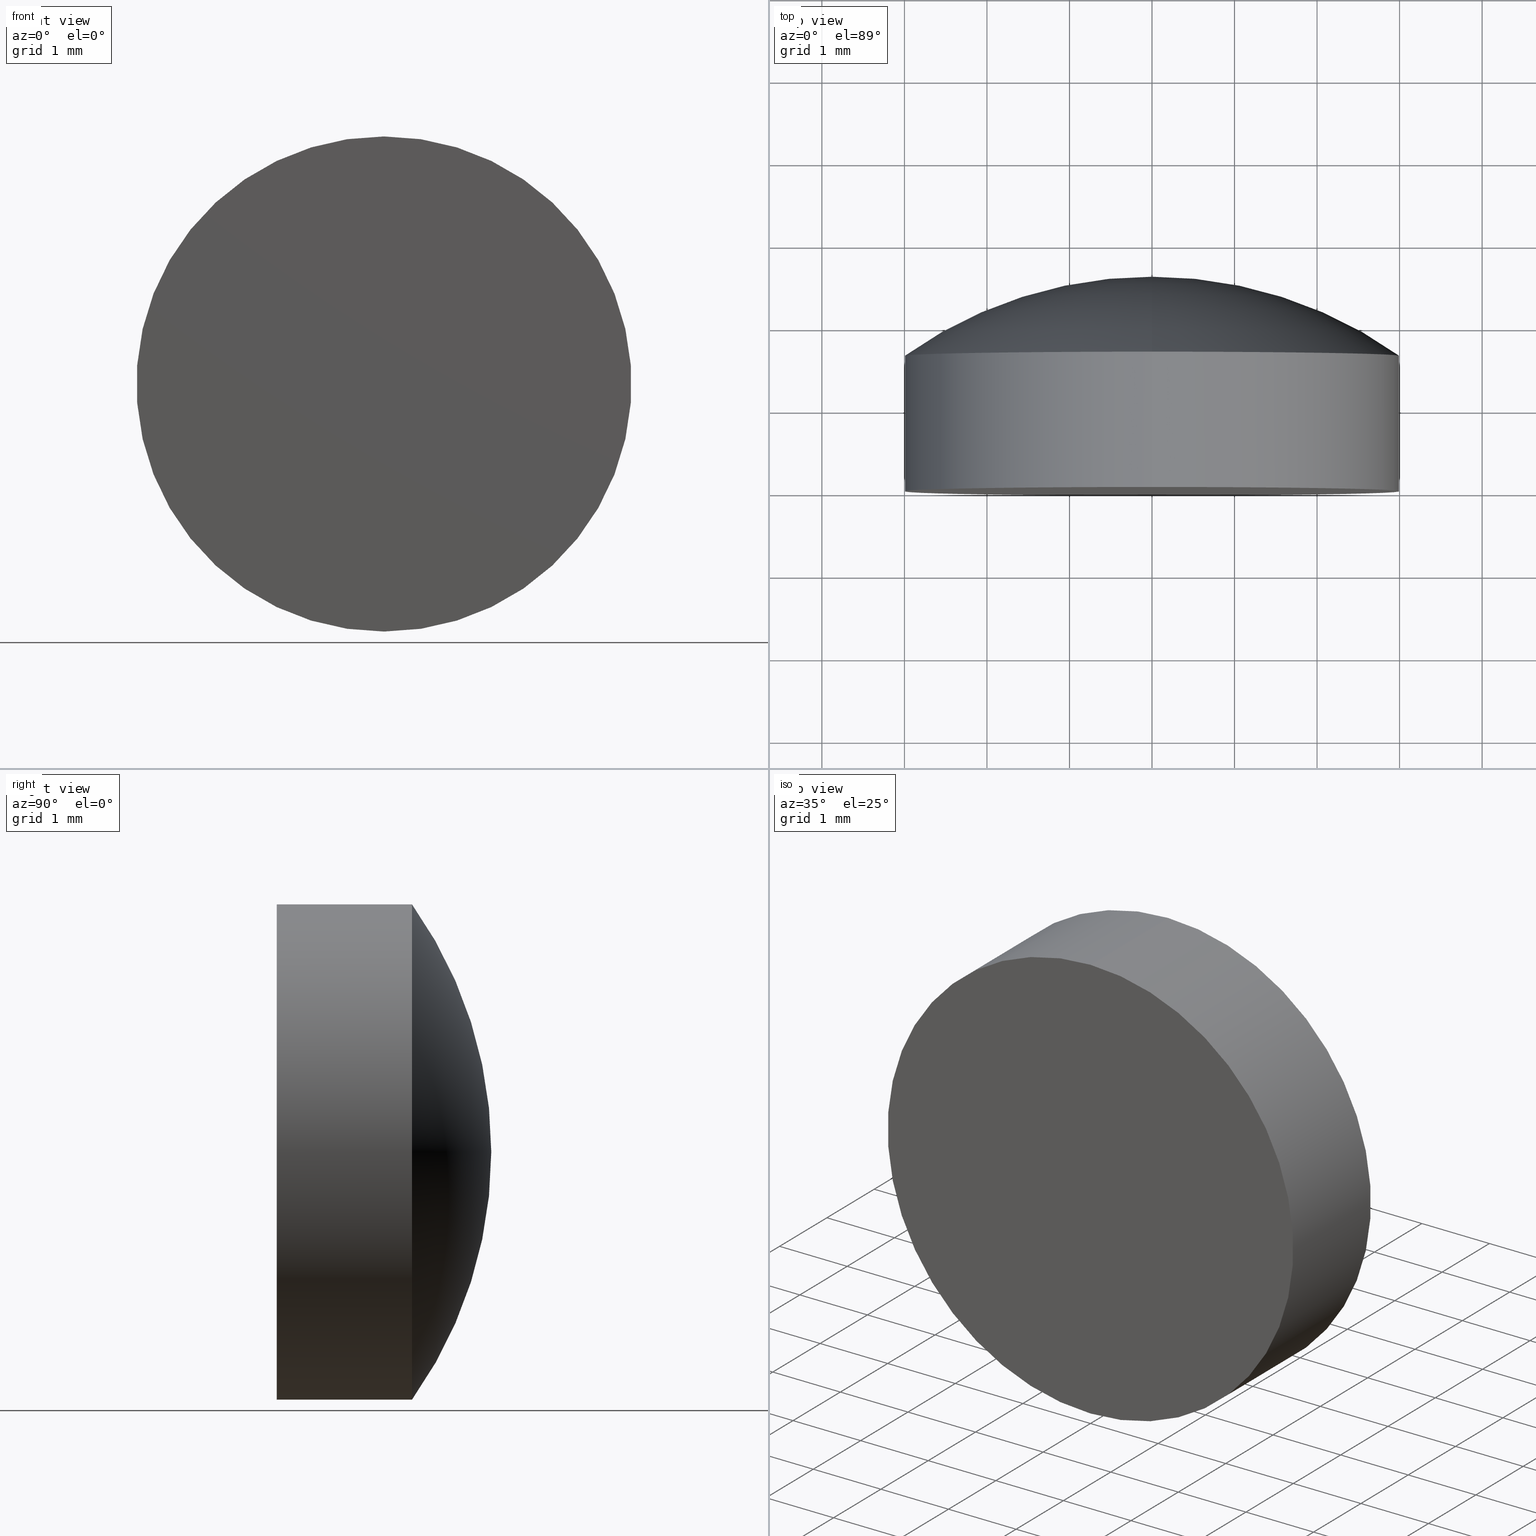
[diagram: canonical four-view strip — front | top / right | iso, engineering-drawing reading convention]
A machine part, canonical four-view strip (front | top / right | iso — engineering-drawing reading convention). The complete STEP part file that produces these views, byte-faithful:
ISO-10303-21;
HEADER;
FILE_DESCRIPTION (( 'STEP AP203' ),
    '1' );
FILE_NAME ('100560.STEP',
    '2024-05-09T04:08:32',
    ( '' ),
    ( '' ),
    'SwSTEP 2.0',
    'SolidWorks 2020',
    '' );
FILE_SCHEMA (( 'CONFIG_CONTROL_DESIGN' ));
ENDSEC;

DATA;
#1 = PERSON_AND_ORGANIZATION ( #107, #57 ) ;
#2 = PERSON_AND_ORGANIZATION_ROLE ( 'design_owner' ) ;
#3 = PERSON_AND_ORGANIZATION_ROLE ( 'design_supplier' ) ;
#4 = PRODUCT_DEFINITION_SHAPE ( 'NONE', 'NONE',  #13 ) ;
#5 = UNCERTAINTY_MEASURE_WITH_UNIT (LENGTH_MEASURE( 1.000000000000000082E-05 ), #134, 'distance_accuracy_value', 'NONE');
#6 = MANIFOLD_SOLID_BREP ( '��ת1', #21 ) ;
#7 = AXIS2_PLACEMENT_3D ( 'NONE', #60, #64, #29 ) ;
#8 = ORIENTED_EDGE ( 'NONE', *, *, #72, .T. ) ;
#9 = DIRECTION ( 'NONE',  ( -0.000000000000000000, 1.000000000000000000, -0.000000000000000000 ) ) ;
#10 = ORIENTED_EDGE ( 'NONE', *, *, #188, .T. ) ;
#11 = SECURITY_CLASSIFICATION ( '', '', #35 ) ;
#12 = PLANE ( 'NONE',  #167 ) ;
#13 = PRODUCT_DEFINITION ( 'δ֪', '', #74, #178 ) ;
#14 = DIRECTION ( 'NONE',  ( 0.000000000000000000, 0.000000000000000000, 1.000000000000000000 ) ) ;
#15 = SHAPE_DEFINITION_REPRESENTATION ( #4, #83 ) ;
#16 = APPROVAL_ROLE ( '' ) ;
#17 = CALENDAR_DATE ( 2024, 9, 5 ) ;
#18 = CALENDAR_DATE ( 2024, 9, 5 ) ;
#19 = ADVANCED_FACE ( 'NONE', ( #77 ), #26, .T. ) ;
#20 = ORIENTED_EDGE ( 'NONE', *, *, #120, .F. ) ;
#21 = CLOSED_SHELL ( 'NONE', ( #194, #37, #41, #55, #19 ) ) ;
#22 = VERTEX_POINT ( 'NONE', #118 ) ;
#23 = ORIENTED_EDGE ( 'NONE', *, *, #112, .T. ) ;
#24 = CIRCLE ( 'NONE', #44, 3.000000000000000000 ) ;
#25 = DIRECTION ( 'NONE',  ( 0.000000000000000000, 0.000000000000000000, 1.000000000000000000 ) ) ;
#26 = CYLINDRICAL_SURFACE ( 'NONE', #161, 3.000000000000000000 ) ;
#27 = DATE_AND_TIME ( #169, #154 ) ;
#28 = CARTESIAN_POINT ( 'NONE',  ( 0.000000000000000000, 1.639999999999999236, 3.000000000000000444 ) ) ;
#29 = DIRECTION ( 'NONE',  ( 1.224646799147353207E-16, 0.000000000000000000, -1.000000000000000000 ) ) ;
#30 = DATE_TIME_ROLE ( 'creation_date' ) ;
#31 = DIRECTION ( 'NONE',  ( 0.000000000000000000, 0.000000000000000000, 1.000000000000000000 ) ) ;
#32 = CC_DESIGN_PERSON_AND_ORGANIZATION_ASSIGNMENT ( #106, #95, ( #11 ) ) ;
#33 = CC_DESIGN_APPROVAL ( #96, ( #11 ) ) ;
#34 = LOCAL_TIME ( 12, 8, 31.00000000000000000, #174 ) ;
#35 = SECURITY_CLASSIFICATION_LEVEL ( 'unclassified' ) ;
#36 = CIRCLE ( 'NONE', #88, 5.169999999999999929 ) ;
#37 = ADVANCED_FACE ( 'NONE', ( #166 ), #103, .T. ) ;
#38 =( GEOMETRIC_REPRESENTATION_CONTEXT ( 3 ) GLOBAL_UNCERTAINTY_ASSIGNED_CONTEXT ( ( #5 ) ) GLOBAL_UNIT_ASSIGNED_CONTEXT ( ( #134, #90, #78 ) ) REPRESENTATION_CONTEXT ( 'NONE', 'WORKASPACE' ) );
#39 = VERTEX_POINT ( 'NONE', #28 ) ;
#40 = EDGE_LOOP ( 'NONE', ( #181, #10, #129, #160 ) ) ;
#41 = ADVANCED_FACE ( 'NONE', ( #45 ), #75, .T. ) ;
#42 = EDGE_LOOP ( 'NONE', ( #20, #145 ) ) ;
#43 = FACE_OUTER_BOUND ( 'NONE', #42, .T. ) ;
#44 = AXIS2_PLACEMENT_3D ( 'NONE', #105, #123, #168 ) ;
#45 = FACE_OUTER_BOUND ( 'NONE', #128, .T. ) ;
#46 = DIRECTION ( 'NONE',  ( 0.000000000000000000, 0.000000000000000000, 1.000000000000000000 ) ) ;
#47 = DIRECTION ( 'NONE',  ( -0.000000000000000000, 1.000000000000000000, -0.000000000000000000 ) ) ;
#48 = PERSON_AND_ORGANIZATION_ROLE ( 'creator' ) ;
#49 = CARTESIAN_POINT ( 'NONE',  ( 3.673940397442060361E-16, 1.639999999999999236, -3.000000000000000444 ) ) ;
#50 = PERSON_AND_ORGANIZATION ( #107, #57 ) ;
#51 = LOCAL_TIME ( 12, 8, 31.00000000000000000, #79 ) ;
#52 = AXIS2_PLACEMENT_3D ( 'NONE', #136, #165, #185 ) ;
#53 = EDGE_CURVE ( 'NONE', #22, #39, #199, .T. ) ;
#54 = AXIS2_PLACEMENT_3D ( 'NONE', #133, #61, #25 ) ;
#55 = ADVANCED_FACE ( 'NONE', ( #43 ), #12, .T. ) ;
#56 = ORIENTED_EDGE ( 'NONE', *, *, #140, .T. ) ;
#57 = ORGANIZATION ( 'δָ��', 'δָ��', '' ) ;
#58 = CARTESIAN_POINT ( 'NONE',  ( 0.000000000000000000, -2.569999938107513593, 0.000000000000000000 ) ) ;
#59 = PRODUCT_RELATED_PRODUCT_CATEGORY ( 'detail', '', ( #143 ) ) ;
#60 = CARTESIAN_POINT ( 'NONE',  ( -9.796931844589988710E-20, -2.569999938107513593, 0.0007999801944047046226 ) ) ;
#61 = DIRECTION ( 'NONE',  ( -0.000000000000000000, 1.000000000000000000, -0.000000000000000000 ) ) ;
#62 = DIRECTION ( 'NONE',  ( -0.000000000000000000, 1.000000000000000000, -0.000000000000000000 ) ) ;
#63 = DIRECTION ( 'NONE',  ( -0.000000000000000000, 1.000000000000000000, -0.000000000000000000 ) ) ;
#64 = DIRECTION ( 'NONE',  ( 1.000000000000000000, 0.000000000000000000, 1.224646799147353207E-16 ) ) ;
#65 = APPLICATION_PROTOCOL_DEFINITION ( 'international standard', 'config_control_design', 1994, #179 ) ;
#66 = APPROVAL_STATUS ( 'not_yet_approved' ) ;
#67 = CIRCLE ( 'NONE', #137, 3.000000000000000000 ) ;
#68 = PERSON_AND_ORGANIZATION ( #107, #57 ) ;
#69 = CALENDAR_DATE ( 2024, 9, 5 ) ;
#70 = CC_DESIGN_PERSON_AND_ORGANIZATION_ASSIGNMENT ( #50, #3, ( #74 ) ) ;
#71 = EDGE_LOOP ( 'NONE', ( #8, #23, #84 ) ) ;
#72 = EDGE_CURVE ( 'NONE', #39, #162, #113, .T. ) ;
#73 = VERTEX_POINT ( 'NONE', #148 ) ;
#74 = PRODUCT_DEFINITION_FORMATION_WITH_SPECIFIED_SOURCE ( '�κ�', '', #143, .NOT_KNOWN. ) ;
#75 = TOROIDAL_SURFACE ( 'NONE', #176, -0.0007999801944047046226, 5.169999999999999929 ) ;
#76 = DIRECTION ( 'NONE',  ( 0.000000000000000000, -1.000000000000000000, 0.000000000000000000 ) ) ;
#77 = FACE_OUTER_BOUND ( 'NONE', #40, .T. ) ;
#78 =( NAMED_UNIT ( * ) SI_UNIT ( $, .STERADIAN. ) SOLID_ANGLE_UNIT ( ) );
#79 = COORDINATED_UNIVERSAL_TIME_OFFSET ( 8, 0, .AHEAD. ) ;
#80 = DIRECTION ( 'NONE',  ( 1.000000000000000000, 0.000000000000000000, 0.000000000000000000 ) ) ;
#81 = DATE_AND_TIME ( #17, #127 ) ;
#82 = AXIS2_PLACEMENT_3D ( 'NONE', #197, #47, #14 ) ;
#83 = ADVANCED_BREP_SHAPE_REPRESENTATION ( '100560', ( #6, #182 ), #38 ) ;
#84 = ORIENTED_EDGE ( 'NONE', *, *, #140, .F. ) ;
#85 = APPROVAL ( #109, 'δָ��' ) ;
#86 = ORIENTED_EDGE ( 'NONE', *, *, #120, .T. ) ;
#87 = DIRECTION ( 'NONE',  ( 0.000000000000000000, 0.000000000000000000, 1.000000000000000000 ) ) ;
#88 = AXIS2_PLACEMENT_3D ( 'NONE', #149, #195, #189 ) ;
#89 = CARTESIAN_POINT ( 'NONE',  ( 0.000000000000000000, 2.600000000000000089, 0.000000000000000000 ) ) ;
#90 =( NAMED_UNIT ( * ) PLANE_ANGLE_UNIT ( ) SI_UNIT ( $, .RADIAN. ) );
#91 = EDGE_CURVE ( 'NONE', #73, #162, #131, .T. ) ;
#92 = FACE_OUTER_BOUND ( 'NONE', #115, .T. ) ;
#93 = APPLICATION_PROTOCOL_DEFINITION ( 'international standard', 'config_control_design', 1994, #98 ) ;
#94 = DATE_AND_TIME ( #18, #34 ) ;
#95 = PERSON_AND_ORGANIZATION_ROLE ( 'classification_officer' ) ;
#96 = APPROVAL ( #177, 'δָ��' ) ;
#97 = APPROVAL_ROLE ( '' ) ;
#98 = APPLICATION_CONTEXT ( 'configuration controlled 3d designs of mechanical parts and assemblies' ) ;
#99 = ORIENTED_EDGE ( 'NONE', *, *, #53, .F. ) ;
#100 = CC_DESIGN_APPROVAL ( #124, ( #74 ) ) ;
#101 = ORIENTED_EDGE ( 'NONE', *, *, #112, .F. ) ;
#102 = ORIENTED_EDGE ( 'NONE', *, *, #91, .T. ) ;
#103 = TOROIDAL_SURFACE ( 'NONE', #52, -0.0007999801944047046226, 5.169999999999999929 ) ;
#104 = DIRECTION ( 'NONE',  ( 0.000000000000000000, -0.000000000000000000, -1.000000000000000000 ) ) ;
#105 = CARTESIAN_POINT ( 'NONE',  ( 0.000000000000000000, -4.336808689942017736E-16, 0.000000000000000000 ) ) ;
#106 = PERSON_AND_ORGANIZATION ( #107, #57 ) ;
#107 = PERSON ( 'δָ��', 'δָ��', 'δָ��', ('δָ��'), ('δָ��'), ('δָ��') ) ;
#108 = CYLINDRICAL_SURFACE ( 'NONE', #156, 3.000000000000000000 ) ;
#109 = APPROVAL_STATUS ( 'not_yet_approved' ) ;
#110 = CC_DESIGN_DATE_AND_TIME_ASSIGNMENT ( #81, #138, ( #11 ) ) ;
#111 = PERSON_AND_ORGANIZATION ( #107, #57 ) ;
#112 = EDGE_CURVE ( 'NONE', #162, #114, #180, .T. ) ;
#113 = CIRCLE ( 'NONE', #54, 3.000000000000000000 ) ;
#114 = VERTEX_POINT ( 'NONE', #132 ) ;
#115 = EDGE_LOOP ( 'NONE', ( #86, #102, #146, #99 ) ) ;
#116 = CC_DESIGN_SECURITY_CLASSIFICATION ( #11, ( #74 ) ) ;
#117 = CC_DESIGN_APPROVAL ( #85, ( #13 ) ) ;
#118 = CARTESIAN_POINT ( 'NONE',  ( 0.000000000000000000, -4.336808689942017736E-16, 3.000000000000000000 ) ) ;
#119 = DIRECTION ( 'NONE',  ( 0.000000000000000000, 0.000000000000000000, 1.000000000000000000 ) ) ;
#120 = EDGE_CURVE ( 'NONE', #22, #73, #24, .T. ) ;
#121 = CARTESIAN_POINT ( 'NONE',  ( 3.673940397442059868E-16, 2.600000000000000089, -3.000000000000000000 ) ) ;
#122 = DATE_AND_TIME ( #69, #175 ) ;
#123 = DIRECTION ( 'NONE',  ( -0.000000000000000000, 1.000000000000000000, -0.000000000000000000 ) ) ;
#124 = APPROVAL ( #66, 'δָ��' ) ;
#125 = CALENDAR_DATE ( 2024, 9, 5 ) ;
#126 = PERSON_AND_ORGANIZATION ( #107, #57 ) ;
#127 = LOCAL_TIME ( 12, 8, 31.00000000000000000, #155 ) ;
#128 = EDGE_LOOP ( 'NONE', ( #101, #192, #56 ) ) ;
#129 = ORIENTED_EDGE ( 'NONE', *, *, #53, .T. ) ;
#130 = APPROVAL_PERSON_ORGANIZATION ( #153, #85, #135 ) ;
#131 = LINE ( 'NONE', #121, #193 ) ;
#132 = CARTESIAN_POINT ( 'NONE',  ( 0.000000000000000000, 2.600000000000000089, 0.000000000000000000 ) ) ;
#133 = CARTESIAN_POINT ( 'NONE',  ( 0.000000000000000000, 1.639999999999999458, 0.000000000000000000 ) ) ;
#134 =( LENGTH_UNIT ( ) NAMED_UNIT ( * ) SI_UNIT ( .MILLI., .METRE. ) );
#135 = APPROVAL_ROLE ( '' ) ;
#136 = CARTESIAN_POINT ( 'NONE',  ( 0.000000000000000000, -2.569999938107513593, 0.000000000000000000 ) ) ;
#137 = AXIS2_PLACEMENT_3D ( 'NONE', #186, #173, #171 ) ;
#138 = DATE_TIME_ROLE ( 'classification_date' ) ;
#139 = COORDINATED_UNIVERSAL_TIME_OFFSET ( 8, 0, .AHEAD. ) ;
#140 = EDGE_CURVE ( 'NONE', #39, #114, #36, .T. ) ;
#141 = CC_DESIGN_PERSON_AND_ORGANIZATION_ASSIGNMENT ( #68, #48, ( #74 ) ) ;
#142 = APPROVAL_PERSON_ORGANIZATION ( #152, #124, #16 ) ;
#143 = PRODUCT ( '100560', '100560', '', ( #172 ) ) ;
#144 = CIRCLE ( 'NONE', #82, 3.000000000000000000 ) ;
#145 = ORIENTED_EDGE ( 'NONE', *, *, #188, .F. ) ;
#146 = ORIENTED_EDGE ( 'NONE', *, *, #72, .F. ) ;
#147 = VECTOR ( 'NONE', #184, 1000.000000000000000 ) ;
#148 = CARTESIAN_POINT ( 'NONE',  ( 3.673940397442059868E-16, -4.336808689942017736E-16, -3.000000000000000000 ) ) ;
#149 = CARTESIAN_POINT ( 'NONE',  ( 0.000000000000000000, -2.569999938107513593, -0.0007999801944047046226 ) ) ;
#150 = APPROVAL_DATE_TIME ( #27, #96 ) ;
#151 = CARTESIAN_POINT ( 'NONE',  ( 0.000000000000000000, 2.600000000000000089, 0.000000000000000000 ) ) ;
#152 = PERSON_AND_ORGANIZATION ( #107, #57 ) ;
#153 = PERSON_AND_ORGANIZATION ( #107, #57 ) ;
#154 = LOCAL_TIME ( 12, 8, 31.00000000000000000, #139 ) ;
#155 = COORDINATED_UNIVERSAL_TIME_OFFSET ( 8, 0, .AHEAD. ) ;
#156 = AXIS2_PLACEMENT_3D ( 'NONE', #151, #62, #119 ) ;
#157 = PERSON_AND_ORGANIZATION_ROLE ( 'creator' ) ;
#158 = CC_DESIGN_PERSON_AND_ORGANIZATION_ASSIGNMENT ( #1, #2, ( #143 ) ) ;
#159 = CC_DESIGN_PERSON_AND_ORGANIZATION_ASSIGNMENT ( #111, #157, ( #13 ) ) ;
#160 = ORIENTED_EDGE ( 'NONE', *, *, #163, .F. ) ;
#161 = AXIS2_PLACEMENT_3D ( 'NONE', #89, #63, #87 ) ;
#162 = VERTEX_POINT ( 'NONE', #49 ) ;
#163 = EDGE_CURVE ( 'NONE', #162, #39, #67, .T. ) ;
#164 = APPROVAL_PERSON_ORGANIZATION ( #126, #96, #97 ) ;
#165 = DIRECTION ( 'NONE',  ( -0.000000000000000000, 1.000000000000000000, -0.000000000000000000 ) ) ;
#166 = FACE_OUTER_BOUND ( 'NONE', #71, .T. ) ;
#167 = AXIS2_PLACEMENT_3D ( 'NONE', #196, #76, #104 ) ;
#168 = DIRECTION ( 'NONE',  ( 0.000000000000000000, 0.000000000000000000, 1.000000000000000000 ) ) ;
#169 = CALENDAR_DATE ( 2024, 9, 5 ) ;
#170 = CARTESIAN_POINT ( 'NONE',  ( 0.000000000000000000, 2.600000000000000089, 3.000000000000000000 ) ) ;
#171 = DIRECTION ( 'NONE',  ( 0.000000000000000000, 0.000000000000000000, 1.000000000000000000 ) ) ;
#172 = MECHANICAL_CONTEXT ( 'NONE', #179, 'mechanical' ) ;
#173 = DIRECTION ( 'NONE',  ( -0.000000000000000000, 1.000000000000000000, -0.000000000000000000 ) ) ;
#174 = COORDINATED_UNIVERSAL_TIME_OFFSET ( 8, 0, .AHEAD. ) ;
#175 = LOCAL_TIME ( 12, 8, 31.00000000000000000, #198 ) ;
#176 = AXIS2_PLACEMENT_3D ( 'NONE', #58, #9, #46 ) ;
#177 = APPROVAL_STATUS ( 'not_yet_approved' ) ;
#178 = DESIGN_CONTEXT ( 'detailed design', #98, 'design' ) ;
#179 = APPLICATION_CONTEXT ( 'configuration controlled 3d designs of mechanical parts and assemblies' ) ;
#180 = CIRCLE ( 'NONE', #7, 5.169999999999999929 ) ;
#181 = ORIENTED_EDGE ( 'NONE', *, *, #91, .F. ) ;
#182 = AXIS2_PLACEMENT_3D ( 'NONE', #191, #31, #80 ) ;
#183 = CC_DESIGN_DATE_AND_TIME_ASSIGNMENT ( #94, #30, ( #13 ) ) ;
#184 = DIRECTION ( 'NONE',  ( -0.000000000000000000, 1.000000000000000000, -0.000000000000000000 ) ) ;
#185 = DIRECTION ( 'NONE',  ( 0.000000000000000000, 0.000000000000000000, 1.000000000000000000 ) ) ;
#186 = CARTESIAN_POINT ( 'NONE',  ( 0.000000000000000000, 1.639999999999999458, 0.000000000000000000 ) ) ;
#187 = APPROVAL_DATE_TIME ( #122, #85 ) ;
#188 = EDGE_CURVE ( 'NONE', #73, #22, #144, .T. ) ;
#189 = DIRECTION ( 'NONE',  ( 0.000000000000000000, 0.000000000000000000, 1.000000000000000000 ) ) ;
#190 = DATE_AND_TIME ( #125, #51 ) ;
#191 = CARTESIAN_POINT ( 'NONE',  ( 0.000000000000000000, 0.000000000000000000, 0.000000000000000000 ) ) ;
#192 = ORIENTED_EDGE ( 'NONE', *, *, #163, .T. ) ;
#193 = VECTOR ( 'NONE', #200, 1000.000000000000000 ) ;
#194 = ADVANCED_FACE ( 'NONE', ( #92 ), #108, .T. ) ;
#195 = DIRECTION ( 'NONE',  ( -1.000000000000000000, 0.000000000000000000, 0.000000000000000000 ) ) ;
#196 = CARTESIAN_POINT ( 'NONE',  ( 0.000000000000000000, -1.836970198721029934E-16, 0.000000000000000000 ) ) ;
#197 = CARTESIAN_POINT ( 'NONE',  ( 0.000000000000000000, -4.336808689942017736E-16, 0.000000000000000000 ) ) ;
#198 = COORDINATED_UNIVERSAL_TIME_OFFSET ( 8, 0, .AHEAD. ) ;
#199 = LINE ( 'NONE', #170, #147 ) ;
#200 = DIRECTION ( 'NONE',  ( -0.000000000000000000, 1.000000000000000000, -0.000000000000000000 ) ) ;
#201 = APPROVAL_DATE_TIME ( #190, #124 ) ;
ENDSEC;
END-ISO-10303-21;
